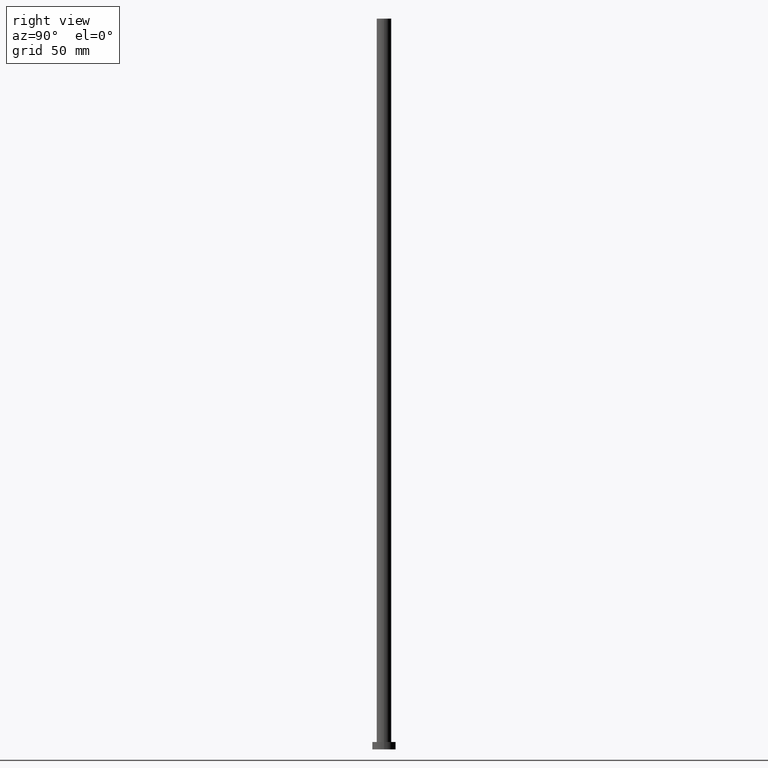
[diagram: clean part render]
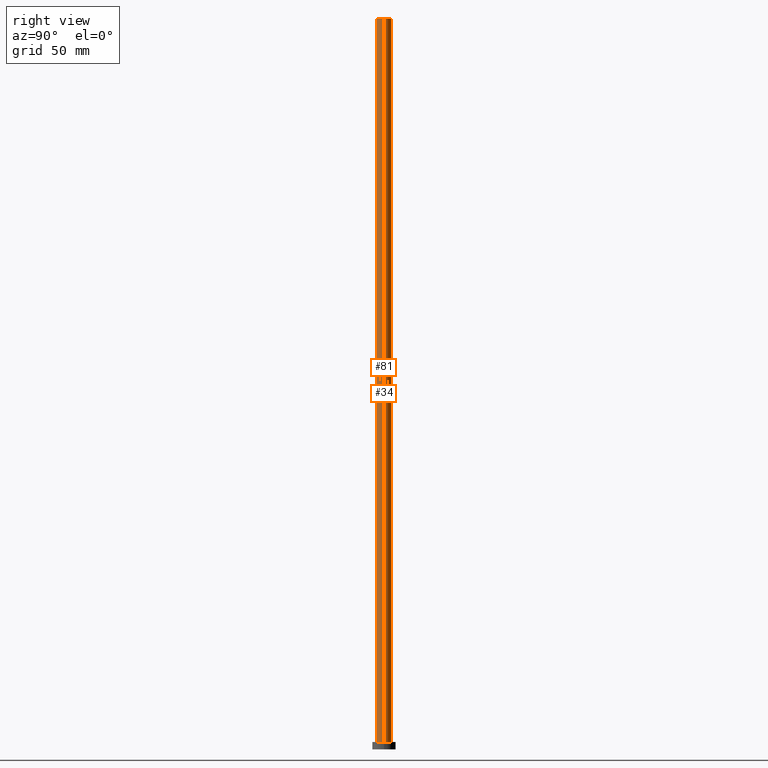
[diagram: same view with one multi-face feature highlighted, each face labeled with its STEP entity id]
A machine part, right view. The highlighted faces form ONE feature: a constant-radius fillet chain: 2 tangent blend faces with common blend radius 5 mm. The faces share edges in the B-rep.
Their STEP definitions:
[1] entity #81 (Cylinder):
#16 = DIRECTION ( 'NONE',  ( -0.000000000000000000, -0.000000000000000000, -1.000000000000000000 ) ) ;
#17 = DIRECTION ( 'NONE',  ( -1.000000000000000000, 0.000000000000000000, 0.000000000000000000 ) ) ;
#32 = EDGE_CURVE ( 'NONE', #85, #229, #255, .T. ) ;
#41 = ORIENTED_EDGE ( 'NONE', *, *, #187, .T. ) ;
#43 = EDGE_CURVE ( 'NONE', #229, #169, #144, .T. ) ;
#46 = AXIS2_PLACEMENT_3D ( 'NONE', #126, #162, #17 ) ;
#48 = CARTESIAN_POINT ( 'NONE',  ( 5.000000000000000888, 6.123233995736767268E-16, 500.0000000000000000 ) ) ;
#53 = DIRECTION ( 'NONE',  ( 1.000000000000000000, 0.000000000000000000, 0.000000000000000000 ) ) ;
#55 = CYLINDRICAL_SURFACE ( 'NONE', #46, 5.000000000000000888 ) ;
#58 = EDGE_CURVE ( 'NONE', #85, #87, #146, .T. ) ;
#62 = CARTESIAN_POINT ( 'NONE',  ( -5.000000000000000888, 0.000000000000000000, 5.000000000000000000 ) ) ;
#70 = ORIENTED_EDGE ( 'NONE', *, *, #32, .F. ) ;
#81 = ADVANCED_FACE ( 'NONE', ( #103 ), #55, .T. ) ;
#85 = VERTEX_POINT ( 'NONE', #181 ) ;
#87 = VERTEX_POINT ( 'NONE', #62 ) ;
#89 = ORIENTED_EDGE ( 'NONE', *, *, #58, .T. ) ;
#99 = DIRECTION ( 'NONE',  ( 0.000000000000000000, 0.000000000000000000, 1.000000000000000000 ) ) ;
#102 = CARTESIAN_POINT ( 'NONE',  ( -5.000000000000000888, 0.000000000000000000, 500.0000000000000000 ) ) ;
#103 = FACE_OUTER_BOUND ( 'NONE', #191, .T. ) ;
#107 = CARTESIAN_POINT ( 'NONE',  ( 0.000000000000000000, 0.000000000000000000, 5.000000000000000000 ) ) ;
#108 = ORIENTED_EDGE ( 'NONE', *, *, #43, .F. ) ;
#118 = VECTOR ( 'NONE', #16, 1000.000000000000000 ) ;
#126 = CARTESIAN_POINT ( 'NONE',  ( 0.000000000000000000, 0.000000000000000000, 500.0000000000000000 ) ) ;
#144 = LINE ( 'NONE', #48, #118 ) ;
#146 = LINE ( 'NONE', #102, #183 ) ;
#162 = DIRECTION ( 'NONE',  ( -0.000000000000000000, -0.000000000000000000, -1.000000000000000000 ) ) ;
#168 = DIRECTION ( 'NONE',  ( 0.000000000000000000, 0.000000000000000000, 1.000000000000000000 ) ) ;
#169 = VERTEX_POINT ( 'NONE', #185 ) ;
#181 = CARTESIAN_POINT ( 'NONE',  ( -5.000000000000000888, 0.000000000000000000, 500.0000000000000000 ) ) ;
#183 = VECTOR ( 'NONE', #198, 1000.000000000000000 ) ;
#185 = CARTESIAN_POINT ( 'NONE',  ( 5.000000000000000888, 6.123233995736767268E-16, 5.000000000000000000 ) ) ;
#187 = EDGE_CURVE ( 'NONE', #87, #169, #212, .T. ) ;
#191 = EDGE_LOOP ( 'NONE', ( #108, #70, #89, #41 ) ) ;
#198 = DIRECTION ( 'NONE',  ( -0.000000000000000000, -0.000000000000000000, -1.000000000000000000 ) ) ;
#212 = CIRCLE ( 'NONE', #247, 5.000000000000000888 ) ;
#222 = DIRECTION ( 'NONE',  ( 1.000000000000000000, 0.000000000000000000, 0.000000000000000000 ) ) ;
#223 = CARTESIAN_POINT ( 'NONE',  ( 5.000000000000000888, 6.123233995736767268E-16, 500.0000000000000000 ) ) ;
#229 = VERTEX_POINT ( 'NONE', #223 ) ;
#234 = AXIS2_PLACEMENT_3D ( 'NONE', #236, #99, #53 ) ;
#236 = CARTESIAN_POINT ( 'NONE',  ( 0.000000000000000000, 0.000000000000000000, 500.0000000000000000 ) ) ;
#247 = AXIS2_PLACEMENT_3D ( 'NONE', #107, #168, #222 ) ;
#255 = CIRCLE ( 'NONE', #234, 5.000000000000000888 ) ;
[2] entity #34 (Cylinder):
#13 = DIRECTION ( 'NONE',  ( -1.000000000000000000, 0.000000000000000000, 0.000000000000000000 ) ) ;
#15 = EDGE_CURVE ( 'NONE', #169, #87, #166, .T. ) ;
#16 = DIRECTION ( 'NONE',  ( -0.000000000000000000, -0.000000000000000000, -1.000000000000000000 ) ) ;
#34 = ADVANCED_FACE ( 'NONE', ( #143 ), #121, .T. ) ;
#36 = EDGE_CURVE ( 'NONE', #229, #85, #174, .T. ) ;
#43 = EDGE_CURVE ( 'NONE', #229, #169, #144, .T. ) ;
#48 = CARTESIAN_POINT ( 'NONE',  ( 5.000000000000000888, 6.123233995736767268E-16, 500.0000000000000000 ) ) ;
#58 = EDGE_CURVE ( 'NONE', #85, #87, #146, .T. ) ;
#62 = CARTESIAN_POINT ( 'NONE',  ( -5.000000000000000888, 0.000000000000000000, 5.000000000000000000 ) ) ;
#78 = CARTESIAN_POINT ( 'NONE',  ( 0.000000000000000000, 0.000000000000000000, 500.0000000000000000 ) ) ;
#80 = AXIS2_PLACEMENT_3D ( 'NONE', #213, #111, #228 ) ;
#85 = VERTEX_POINT ( 'NONE', #181 ) ;
#86 = ORIENTED_EDGE ( 'NONE', *, *, #43, .T. ) ;
#87 = VERTEX_POINT ( 'NONE', #62 ) ;
#97 = CARTESIAN_POINT ( 'NONE',  ( 0.000000000000000000, 0.000000000000000000, 500.0000000000000000 ) ) ;
#102 = CARTESIAN_POINT ( 'NONE',  ( -5.000000000000000888, 0.000000000000000000, 500.0000000000000000 ) ) ;
#111 = DIRECTION ( 'NONE',  ( 0.000000000000000000, 0.000000000000000000, 1.000000000000000000 ) ) ;
#116 = ORIENTED_EDGE ( 'NONE', *, *, #58, .F. ) ;
#118 = VECTOR ( 'NONE', #16, 1000.000000000000000 ) ;
#121 = CYLINDRICAL_SURFACE ( 'NONE', #207, 5.000000000000000888 ) ;
#124 = DIRECTION ( 'NONE',  ( 1.000000000000000000, 0.000000000000000000, 0.000000000000000000 ) ) ;
#143 = FACE_OUTER_BOUND ( 'NONE', #209, .T. ) ;
#144 = LINE ( 'NONE', #48, #118 ) ;
#146 = LINE ( 'NONE', #102, #183 ) ;
#160 = ORIENTED_EDGE ( 'NONE', *, *, #36, .F. ) ;
#166 = CIRCLE ( 'NONE', #80, 5.000000000000000888 ) ;
#169 = VERTEX_POINT ( 'NONE', #185 ) ;
#174 = CIRCLE ( 'NONE', #226, 5.000000000000000888 ) ;
#175 = DIRECTION ( 'NONE',  ( 0.000000000000000000, 0.000000000000000000, 1.000000000000000000 ) ) ;
#181 = CARTESIAN_POINT ( 'NONE',  ( -5.000000000000000888, 0.000000000000000000, 500.0000000000000000 ) ) ;
#183 = VECTOR ( 'NONE', #198, 1000.000000000000000 ) ;
#185 = CARTESIAN_POINT ( 'NONE',  ( 5.000000000000000888, 6.123233995736767268E-16, 5.000000000000000000 ) ) ;
#198 = DIRECTION ( 'NONE',  ( -0.000000000000000000, -0.000000000000000000, -1.000000000000000000 ) ) ;
#207 = AXIS2_PLACEMENT_3D ( 'NONE', #78, #218, #13 ) ;
#209 = EDGE_LOOP ( 'NONE', ( #160, #86, #211, #116 ) ) ;
#211 = ORIENTED_EDGE ( 'NONE', *, *, #15, .T. ) ;
#213 = CARTESIAN_POINT ( 'NONE',  ( 0.000000000000000000, 0.000000000000000000, 5.000000000000000000 ) ) ;
#218 = DIRECTION ( 'NONE',  ( -0.000000000000000000, -0.000000000000000000, -1.000000000000000000 ) ) ;
#223 = CARTESIAN_POINT ( 'NONE',  ( 5.000000000000000888, 6.123233995736767268E-16, 500.0000000000000000 ) ) ;
#226 = AXIS2_PLACEMENT_3D ( 'NONE', #97, #175, #124 ) ;
#228 = DIRECTION ( 'NONE',  ( 1.000000000000000000, 0.000000000000000000, 0.000000000000000000 ) ) ;
#229 = VERTEX_POINT ( 'NONE', #223 ) ;